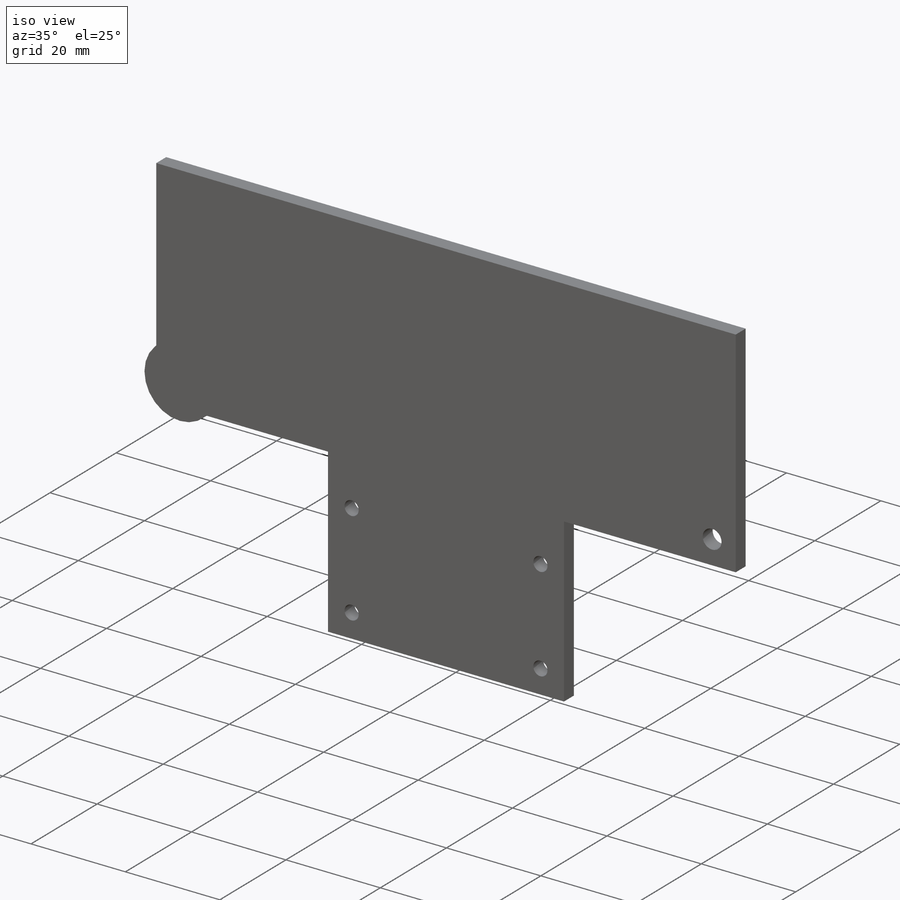
[diagram: iso view]
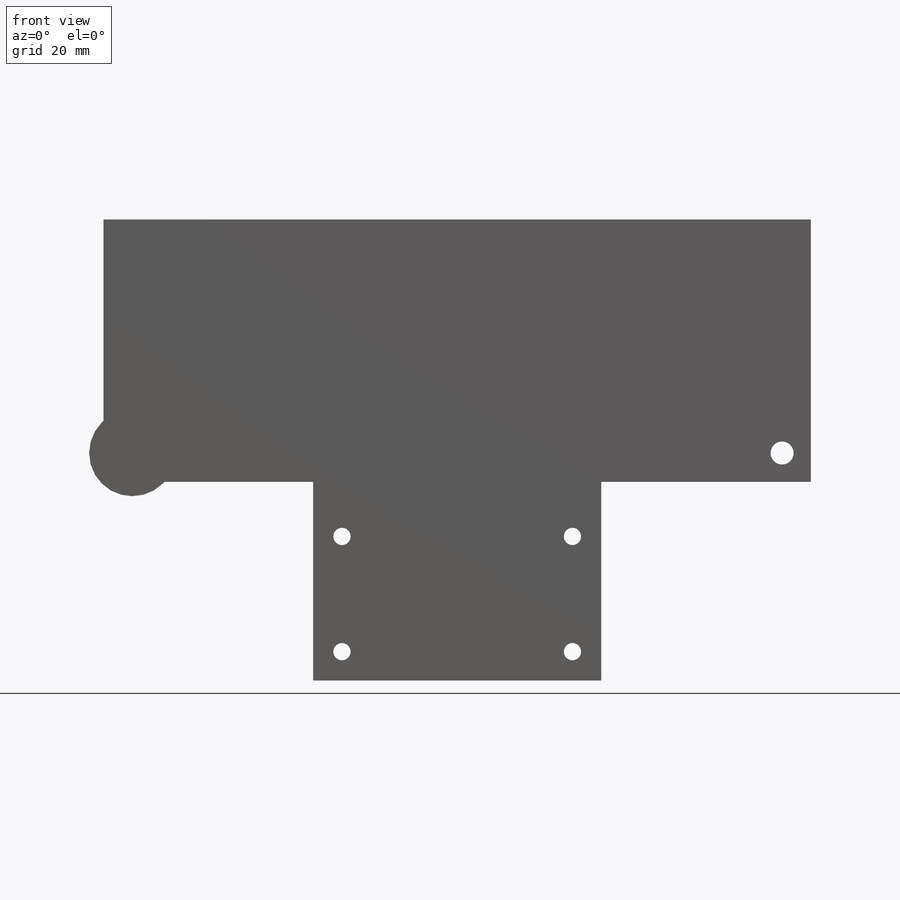
[diagram: front view]
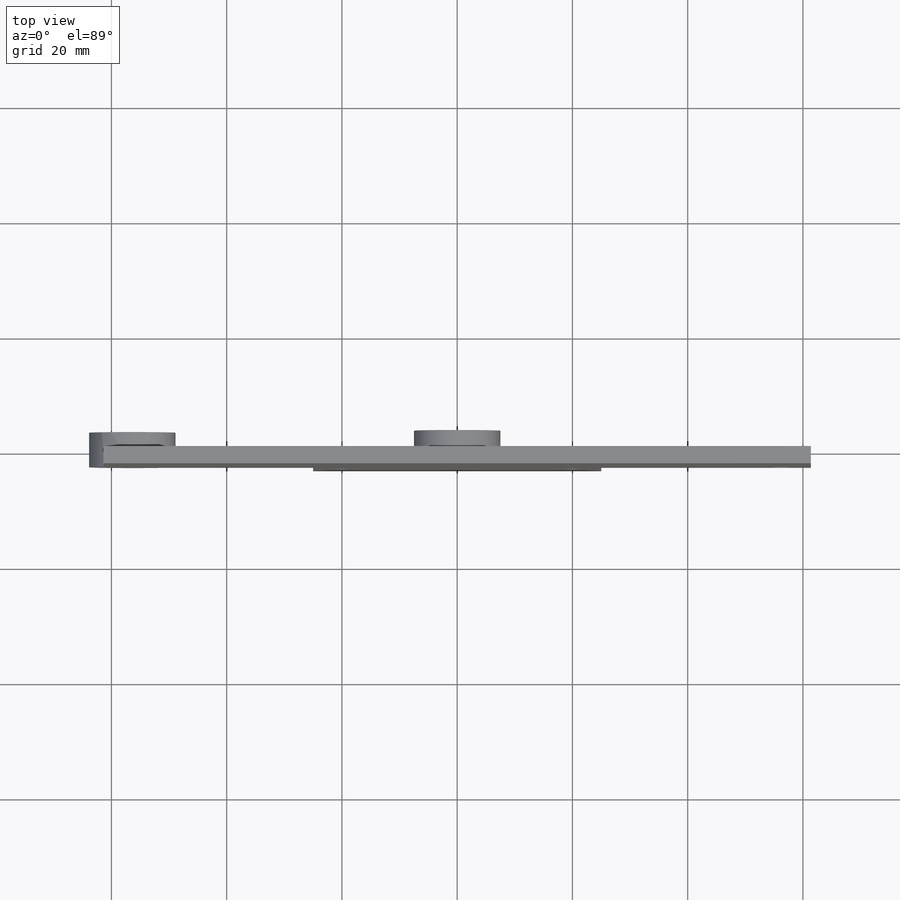
[diagram: top view]
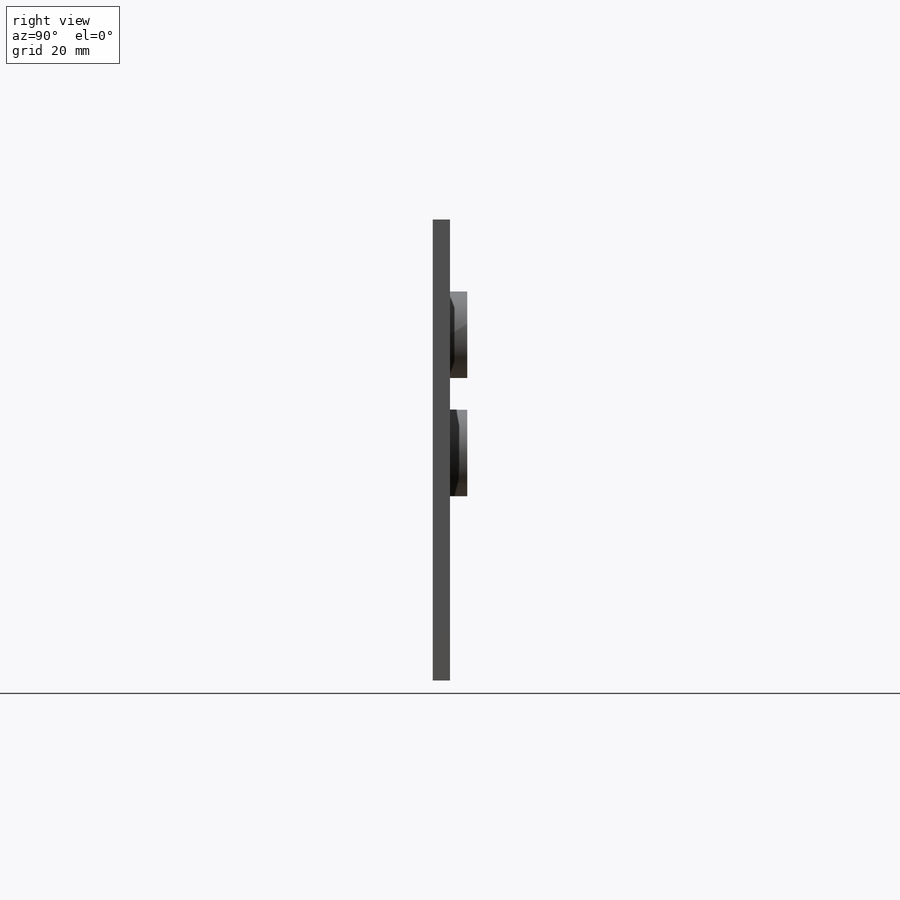
[diagram: right view]
SOLIDWORKS PART (.sldprt)
format: sldprt  version: not decoded by parser v0  size: 201,728 bytes
history: native  units: mm
features: sketch x4, plane x3, extrude x2, cut_extrude x2, material x1 (+13 scaffold rows collapsed)
feature tree (25):
  scaffold x13  (default folders/planes/origin — collapsed)
  material  "Matériau <non spécifié>"
  plane  "Plan de face"
  plane  "Plan de dessus"
  plane  "Plan de droite"
  sketch  "Esquisse1"  dims[c1.D3=4.0mm c1.D4=4.0mm c1.D5=4.0mm c1.D7=4.0mm c1.D13=3.0mm c1.D14=3.0mm c1.D19=3.0mm c1.D20=3.0mm c1.D21=3.0mm c1.D22=40.0mm c1.D23=40.0mm c1.D24=~3.434158mm c1.D25=~3.434158mm c1.D26=4.0mm c1.D27=40.0mm c1.D28=40.0mm c2.D24=4.0mm c2.D1=120.0mm c2.D2=50.0mm c2.D5=20.0mm c2.D6=20.0mm c2.D8=40.0mm c3.D1=50.0mm c3.D9=80.0mm c3.D10=25.0mm c3.D2=25.0mm c4.D10=25.0mm c4.D11=30.0mm c4.D12=15.0mm c4.D14=20.0mm c4.D15=10.0mm c4.D16=100.0mm c4.D17=50.0mm c4.D18=50.0mm c4.D2=25.0mm c5.D10=30.0mm c5.D18=15.0mm c5.D20=10.0mm c5.D21=20.0mm c5.D24=20.0mm c5.D25=60.0mm c5.D22=5.0mm c5.D27=5.0mm c5.D23=55.0mm c6.D27=25.0mm c6.D22=5.0mm c6.D24=60.0mm c6.D25=~58.14656mm c7.D25=20.0deg c7.D23=5.0mm]
  extrude  "Boss.-Extru.1"  Depth=3mm
  sketch  "Esquisse3"  dims[c1.D1=3.0mm c1.D2=15.0mm c2.D1=15.0mm c2.D3=15.0mm]
  extrude  "Boss.-Extru.2"  Depth=6mm
  sketch  "Esquisse4"  dims[D1=7.75mm D2=7.75mm D3=~4.188663mm]
  cut_extrude  "Enlèv. mat.-Extru.1"  Depth=1mm
  sketch  "Esquisse5"  dims[D1=4.75mm D2=4.75mm D3=4.75mm]
  cut_extrude  "Enlèv. mat.-Extru.2"  Depth=4mm
decode coverage: 8 of 8 modeling features carry decoded parameters
note: ~ marks probable driven/reference dimensions
note: suppression state not decoded; provenance and decode notes live in map.json
